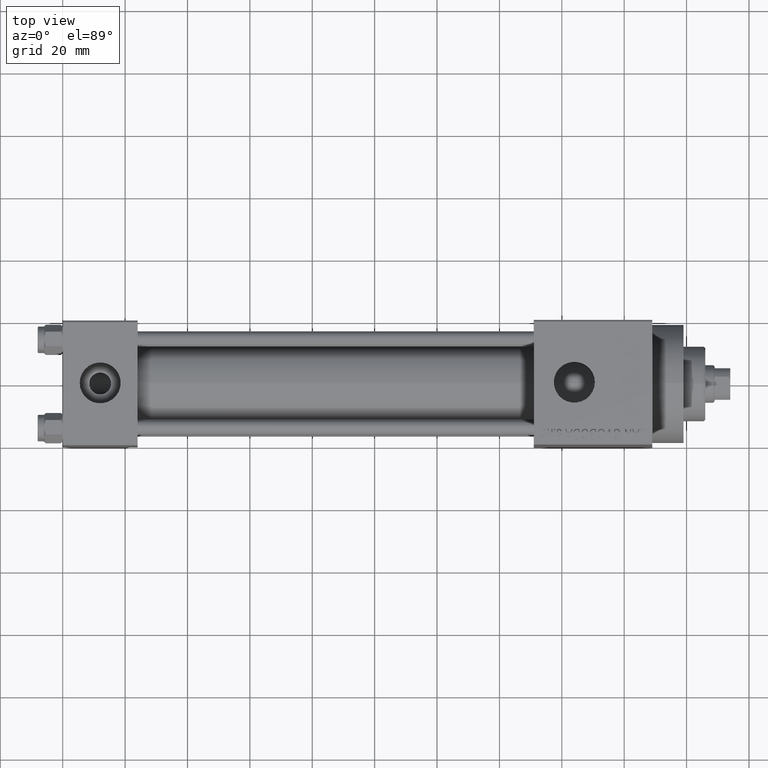
[diagram: clean part render]
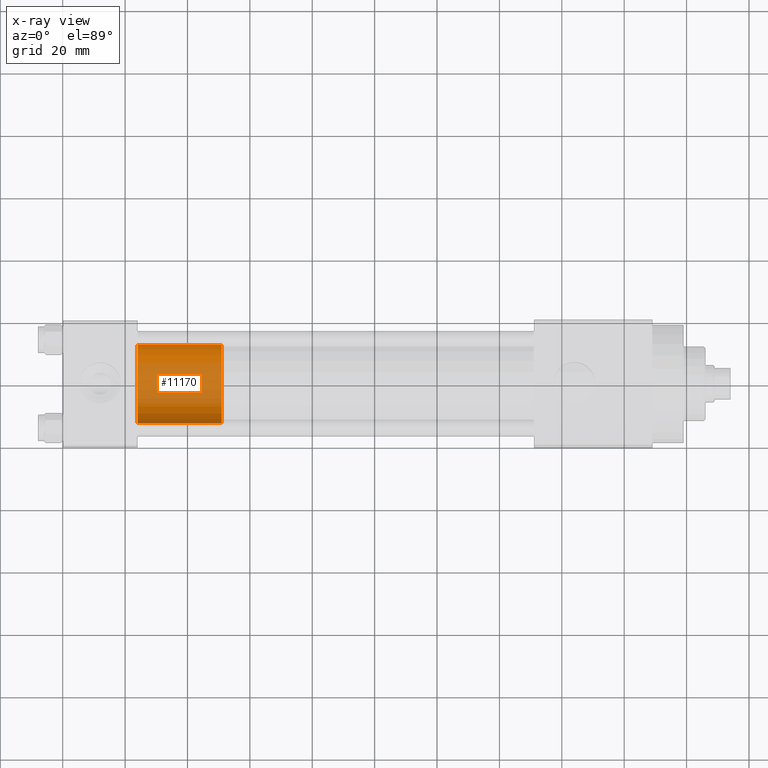
[diagram: x-ray — body ghosted, one internal face saturated and labeled with its STEP entity id]
A machine part, top view, then the same camera in x-ray: the body is ghosted and one INTERNAL B-rep face — a face not visible from any outside direction — is saturated and labeled: STEP entity #11170.
In plain terms, the highlighted cylindrical surface (partial cylindrical patch) has radius 12.5 mm, axis along (-1, 0, 0).
Its self-contained STEP definition (entity closure, byte-faithful):
#50 = CARTESIAN_POINT ( 'NONE',  ( 12.50000000000000000, 1.530808498934191521E-15, 27.00000000000000000 ) ) ;
#559 = VERTEX_POINT ( 'NONE', #50 ) ;
#1026 = CARTESIAN_POINT ( 'NONE',  ( -12.50000000000000000, 0.000000000000000000, 0.000000000000000000 ) ) ;
#1086 = LINE ( 'NONE', #22625, #2433 ) ;
#2433 = VECTOR ( 'NONE', #7550, 1000.000000000000000 ) ;
#2783 = CARTESIAN_POINT ( 'NONE',  ( -12.50000000000000000, 0.000000000000000000, 27.00000000000000000 ) ) ;
#4659 = CARTESIAN_POINT ( 'NONE',  ( 12.50000000000000000, 1.530808498934191521E-15, 0.000000000000000000 ) ) ;
#5302 = EDGE_CURVE ( 'NONE', #27379, #36784, #19168, .T. ) ;
#5746 = DIRECTION ( 'NONE',  ( -1.000000000000000000, 0.000000000000000000, 0.000000000000000000 ) ) ;
#5767 = ORIENTED_EDGE ( 'NONE', *, *, #5302, .T. ) ;
#5815 = CARTESIAN_POINT ( 'NONE',  ( 0.000000000000000000, 0.000000000000000000, 0.000000000000000000 ) ) ;
#6894 = EDGE_CURVE ( 'NONE', #559, #27379, #1086, .T. ) ;
#7550 = DIRECTION ( 'NONE',  ( -0.000000000000000000, -0.000000000000000000, -1.000000000000000000 ) ) ;
#9338 = DIRECTION ( 'NONE',  ( 0.000000000000000000, 0.000000000000000000, 1.000000000000000000 ) ) ;
#11170 = ADVANCED_FACE ( 'NONE', ( #30631 ), #34934, .T. ) ;
#12023 = AXIS2_PLACEMENT_3D ( 'NONE', #27768, #9338, #38284 ) ;
#12082 = ORIENTED_EDGE ( 'NONE', *, *, #36134, .F. ) ;
#12454 = DIRECTION ( 'NONE',  ( -0.000000000000000000, -0.000000000000000000, -1.000000000000000000 ) ) ;
#12688 = CARTESIAN_POINT ( 'NONE',  ( 0.000000000000000000, 0.000000000000000000, 27.00000000000000000 ) ) ;
#14354 = CIRCLE ( 'NONE', #12023, 12.50000000000000000 ) ;
#16678 = EDGE_LOOP ( 'NONE', ( #25925, #17633, #5767, #12082 ) ) ;
#17595 = DIRECTION ( 'NONE',  ( -0.000000000000000000, -0.000000000000000000, -1.000000000000000000 ) ) ;
#17633 = ORIENTED_EDGE ( 'NONE', *, *, #6894, .T. ) ;
#19168 = CIRCLE ( 'NONE', #45901, 12.50000000000000000 ) ;
#22625 = CARTESIAN_POINT ( 'NONE',  ( 12.50000000000000000, 1.530808498934191521E-15, 27.00000000000000000 ) ) ;
#24383 = EDGE_CURVE ( 'NONE', #559, #31852, #14354, .T. ) ;
#25925 = ORIENTED_EDGE ( 'NONE', *, *, #24383, .F. ) ;
#27379 = VERTEX_POINT ( 'NONE', #4659 ) ;
#27768 = CARTESIAN_POINT ( 'NONE',  ( 0.000000000000000000, 0.000000000000000000, 27.00000000000000000 ) ) ;
#28137 = LINE ( 'NONE', #2783, #29870 ) ;
#29870 = VECTOR ( 'NONE', #17595, 1000.000000000000000 ) ;
#30631 = FACE_OUTER_BOUND ( 'NONE', #16678, .T. ) ;
#30981 = CARTESIAN_POINT ( 'NONE',  ( -12.50000000000000000, 0.000000000000000000, 27.00000000000000000 ) ) ;
#31852 = VERTEX_POINT ( 'NONE', #30981 ) ;
#34934 = CYLINDRICAL_SURFACE ( 'NONE', #37702, 12.50000000000000000 ) ;
#36134 = EDGE_CURVE ( 'NONE', #31852, #36784, #28137, .T. ) ;
#36784 = VERTEX_POINT ( 'NONE', #1026 ) ;
#37702 = AXIS2_PLACEMENT_3D ( 'NONE', #12688, #12454, #5746 ) ;
#38284 = DIRECTION ( 'NONE',  ( 1.000000000000000000, 0.000000000000000000, 0.000000000000000000 ) ) ;
#41697 = DIRECTION ( 'NONE',  ( 0.000000000000000000, 0.000000000000000000, 1.000000000000000000 ) ) ;
#45046 = DIRECTION ( 'NONE',  ( 1.000000000000000000, 0.000000000000000000, 0.000000000000000000 ) ) ;
#45901 = AXIS2_PLACEMENT_3D ( 'NONE', #5815, #41697, #45046 ) ;